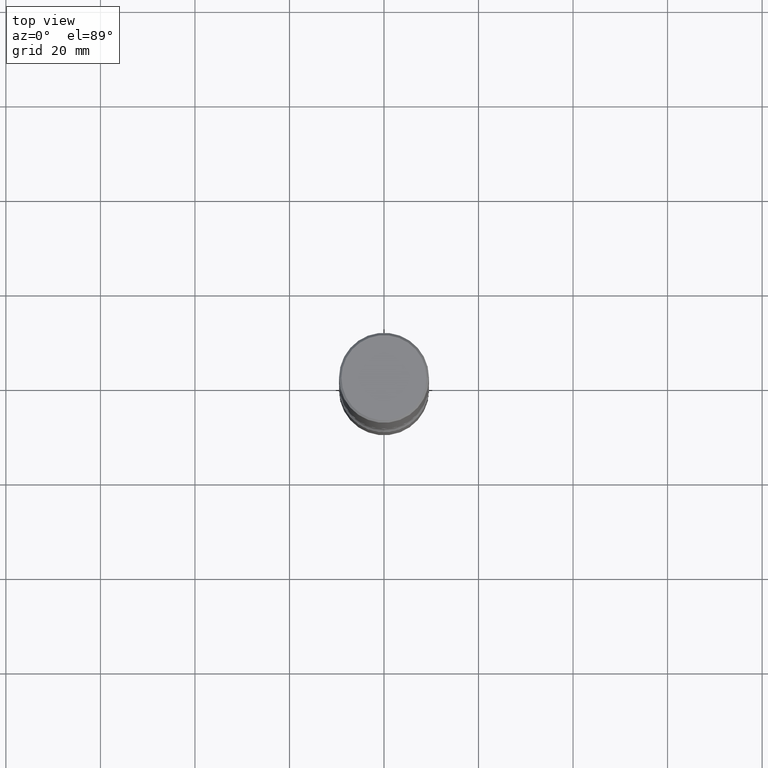
[diagram: clean part render]
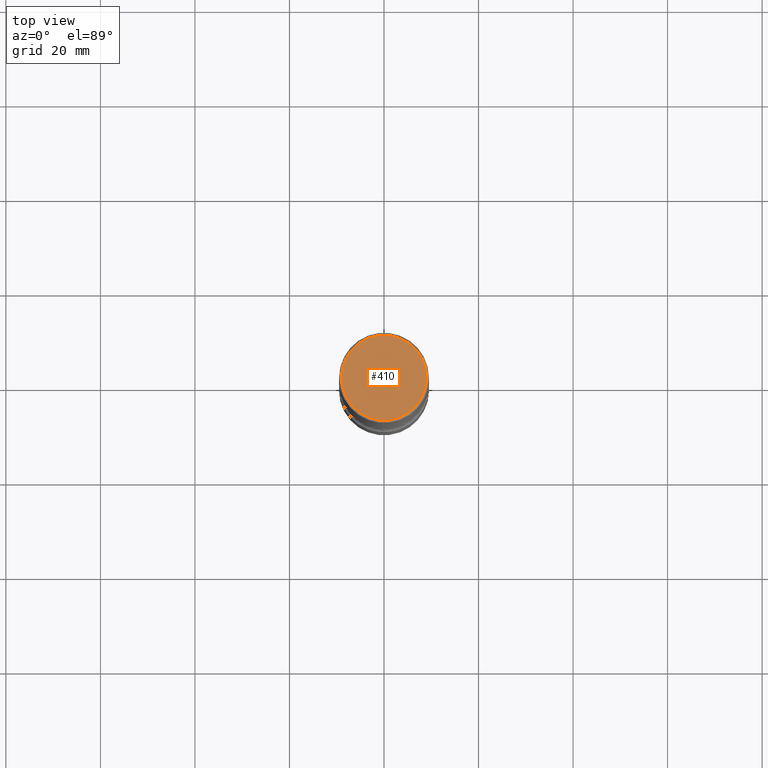
[diagram: same view with one face highlighted and labeled with its STEP entity id]
A machine part, top view. The second image highlights one B-rep face of the part: STEP entity #410.
In plain terms, the highlighted planar face has unit normal (0, -0, -1).
Its self-contained STEP definition (entity closure, byte-faithful):
#31 = PLANE ( 'NONE',  #117 ) ;
#42 = AXIS2_PLACEMENT_3D ( 'NONE', #217, #261, #540 ) ;
#56 = ORIENTED_EDGE ( 'NONE', *, *, #393, .T. ) ;
#70 = DIRECTION ( 'NONE',  ( 2.438088387897960049E-29, -3.491481338843145188E-15, -1.000000000000000000 ) ) ;
#117 = AXIS2_PLACEMENT_3D ( 'NONE', #513, #70, #302 ) ;
#152 = VERTEX_POINT ( 'NONE', #154 ) ;
#154 = CARTESIAN_POINT ( 'NONE',  ( 0.3550000000000000377, -2.538996582575041048E-15, 4.268512490117958041E-18 ) ) ;
#170 = DIRECTION ( 'NONE',  ( -2.445468806185136597E-29, 3.491481338843145583E-15, 1.000000000000000000 ) ) ;
#217 = CARTESIAN_POINT ( 'NONE',  ( -1.043851414335219820E-46, 1.490343170380447200E-32, 4.268512490100411279E-18 ) ) ;
#235 = CIRCLE ( 'NONE', #396, 0.3550000000000000377 ) ;
#261 = DIRECTION ( 'NONE',  ( -2.445468806185136597E-29, 3.491481338843145583E-15, 1.000000000000000000 ) ) ;
#299 = CARTESIAN_POINT ( 'NONE',  ( -0.3550000000000000377, 2.513866563967055858E-15, 4.268512490082953109E-18 ) ) ;
#302 = DIRECTION ( 'NONE',  ( -1.000000000000000000, 6.982962677686265922E-15, -4.876176775795935793E-29 ) ) ;
#303 = EDGE_LOOP ( 'NONE', ( #475, #56 ) ) ;
#340 = DIRECTION ( 'NONE',  ( 1.000000000000000000, -6.982962677686266711E-15, 4.876231632511987623E-29 ) ) ;
#393 = EDGE_CURVE ( 'NONE', #152, #431, #511, .T. ) ;
#396 = AXIS2_PLACEMENT_3D ( 'NONE', #546, #170, #340 ) ;
#410 = ADVANCED_FACE ( 'NONE', ( #459 ), #31, .F. ) ;
#431 = VERTEX_POINT ( 'NONE', #299 ) ;
#437 = EDGE_CURVE ( 'NONE', #431, #152, #235, .T. ) ;
#459 = FACE_OUTER_BOUND ( 'NONE', #303, .T. ) ;
#475 = ORIENTED_EDGE ( 'NONE', *, *, #437, .T. ) ;
#511 = CIRCLE ( 'NONE', #42, 0.3550000000000000377 ) ;
#513 = CARTESIAN_POINT ( 'NONE',  ( 2.478951750578624998E-15, 0.3550000000000000377, -1.237341619044266624E-15 ) ) ;
#540 = DIRECTION ( 'NONE',  ( 1.000000000000000000, -6.982962677686266711E-15, 4.876231632511987623E-29 ) ) ;
#546 = CARTESIAN_POINT ( 'NONE',  ( -1.043851414335219820E-46, 1.490343170380447200E-32, 4.268512490100411279E-18 ) ) ;